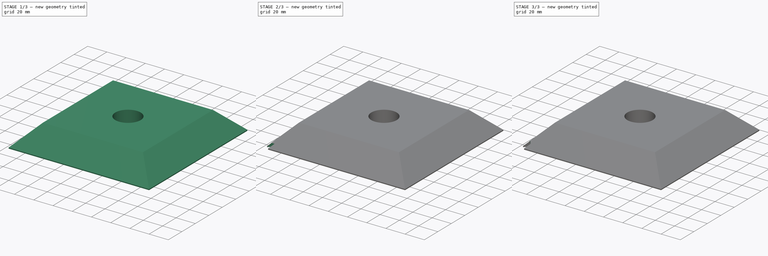
[diagram: build sequence overview — one tinted view per stage of 3, left to right]
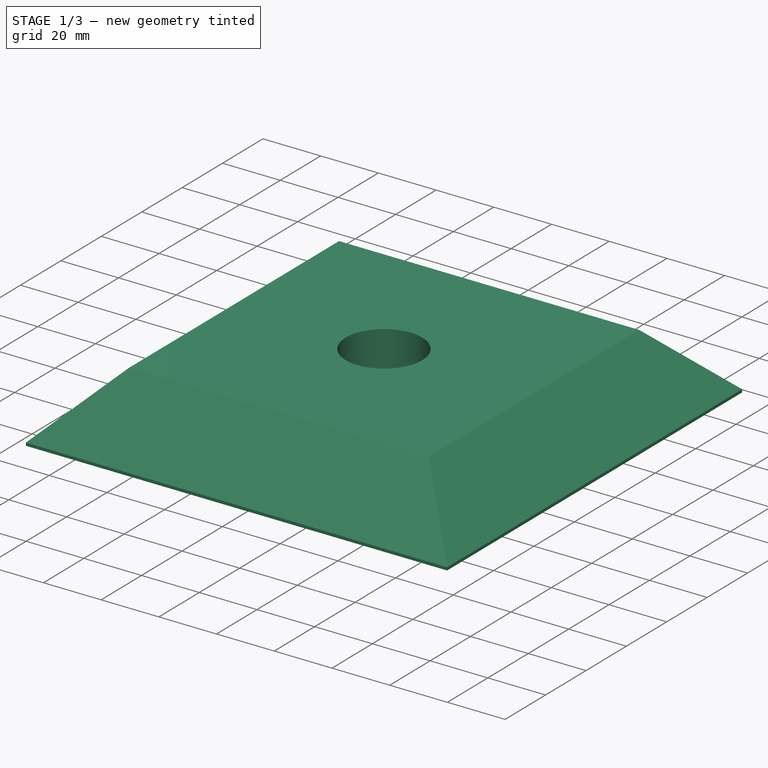
[diagram: stage 1 of 3 — iso view after this stage's code; geometry added in this stage tinted green]
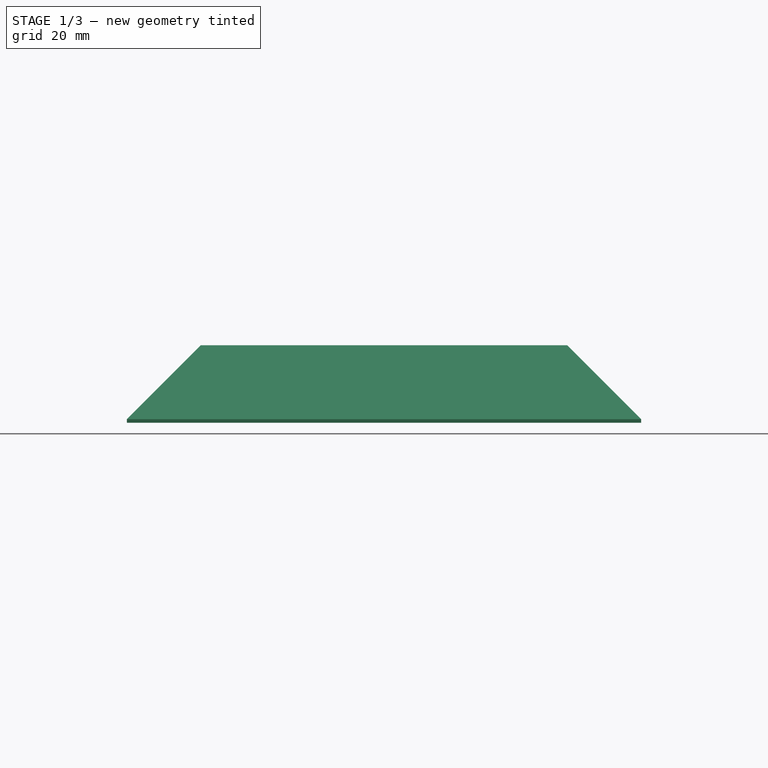
[diagram: stage 1 of 3 — front view after this stage's code; geometry added in this stage tinted green]
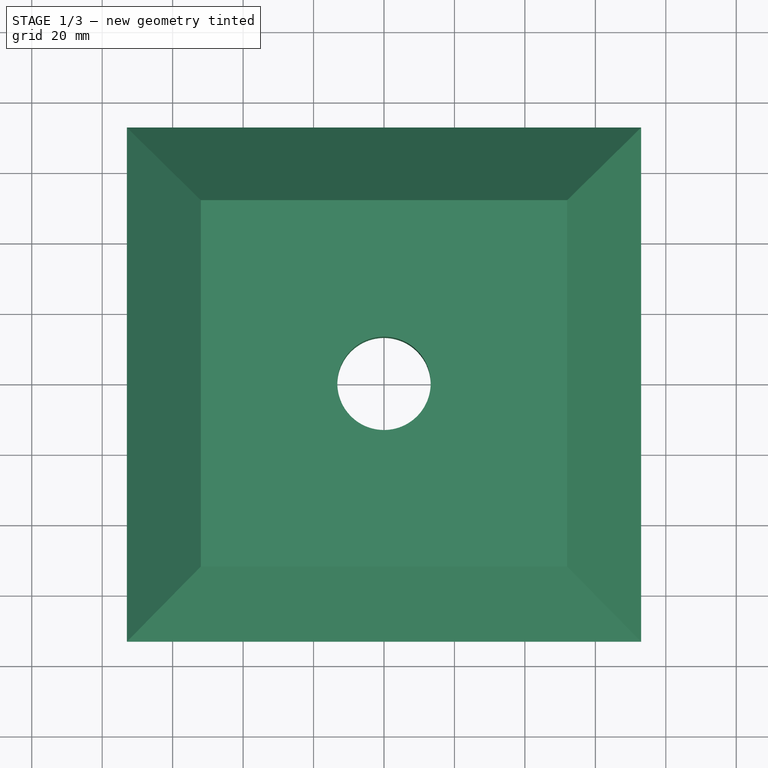
[diagram: stage 1 of 3 — top view after this stage's code; geometry added in this stage tinted green]
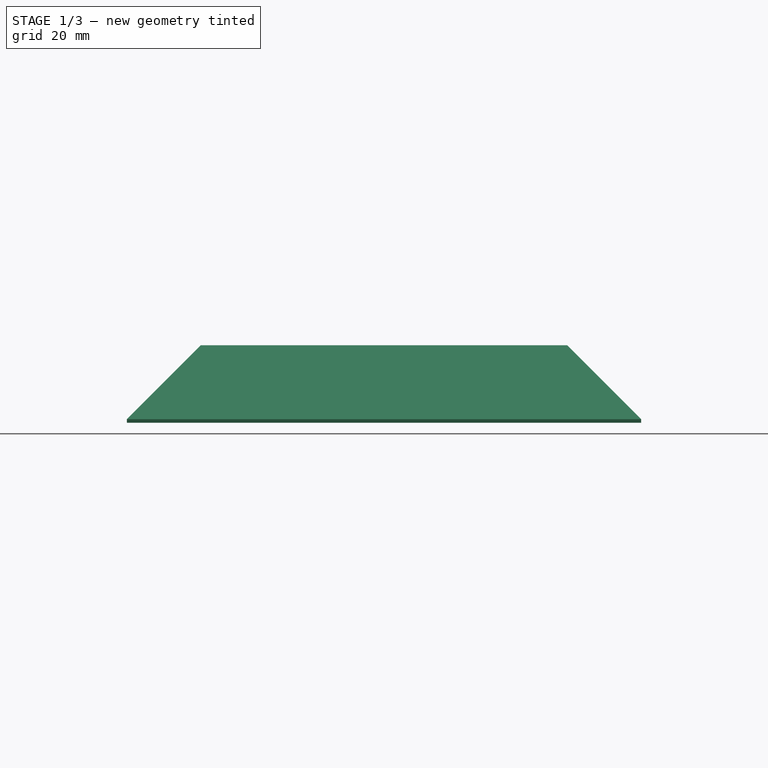
[diagram: stage 1 of 3 — right view after this stage's code; geometry added in this stage tinted green]
FCSTD DOCUMENT  (FreeCAD 1.0R39319 (Git))
Label: Downlight bracket for candle holder
License: All rights reserved
objects: Sketcher::SketchObject×5, PartDesign::Pocket×4, PartDesign::Fillet×2, PartDesign::Pad×1, PartDesign::Chamfer×1, PartDesign::Body×1
note: 35 computed .brp shape members not serialized (recipe doc carries the construction recipe); baked Part::Feature solids carry a one-line shape summary decoded from their .brp

FEATURE [Sketcher::SketchObject] Sketch
  ArcFitTolerance = 1e-06
  AttachmentSupport = -> [XY_Plane]
  FullyConstrained = true
  MakeInternals = false
  MapMode = 5
  sketch-geometry (4):
    g0: LineSegment StartX=-73 StartY=73 StartZ=0 EndX=-73 EndY=-73 EndZ=0
    g1: LineSegment StartX=-73 StartY=-73 StartZ=0 EndX=73 EndY=-73 EndZ=0
    g2: LineSegment StartX=73 StartY=-73 StartZ=0 EndX=73 EndY=73 EndZ=0
    g3: LineSegment StartX=73 StartY=73 StartZ=0 EndX=-73 EndY=73 EndZ=0
  constraints (10):
    c: Coincident(g0,g1)
    c: Coincident(g1,g2)
    c: Coincident(g2,g3)
    c: Coincident(g3,g0)
    c: Vertical(g0)
    c: Horizontal(g1)
    c: Symmetric(g2,g0,g-2)
    c: Symmetric(g2,g1,g-1)
    c: Distance(g3) = 146
    c: Distance(g2) = 146
FEATURE [PartDesign::Pad] Pad
  Direction = (0,0,1)
  Length = 22
  Length2 = 10
  Profile = -> Sketch
  ReferenceAxis = -> Sketch [N_Axis]
  Refine = true
  Suppressed = false
  Type = 0
FEATURE [Sketcher::SketchObject] Sketch001
  ArcFitTolerance = 1e-06
  AttachmentSupport = -> [Pad]
  FullyConstrained = true
  MakeInternals = false
  MapMode = 5
  Placement = pos=(0,0,22) rot=(0,0,1;0rad)
  sketch-geometry (1):
    g0: Circle CenterX=0 CenterY=0 CenterZ=0 NormalX=0 NormalY=0 NormalZ=1 AngleXU=0 Radius=13.25
  constraints (2):
    c: Diameter(g0) = 26.5
    c: Coincident(g0,g-1)
FEATURE [PartDesign::Chamfer] Chamfer
  Angle = 45
  Base = -> Pad [Edge10,Edge7,Edge4,Edge12]
  BaseFeature = -> Pad
  ChamferType = 0
  FlipDirection = false
  Refine = true
  Size = 21
  Size2 = 21
  SupportTransform = false
  Suppressed = false
  UseAllEdges = false
FEATURE [PartDesign::Pocket] Pocket
  BaseFeature = -> Chamfer
  Direction = (0,0,-1)
  Length = 5
  Length2 = 5
  Profile = -> Sketch001
  ReferenceAxis = -> Sketch001 [N_Axis]
  Refine = true
  Suppressed = false
  Type = 1
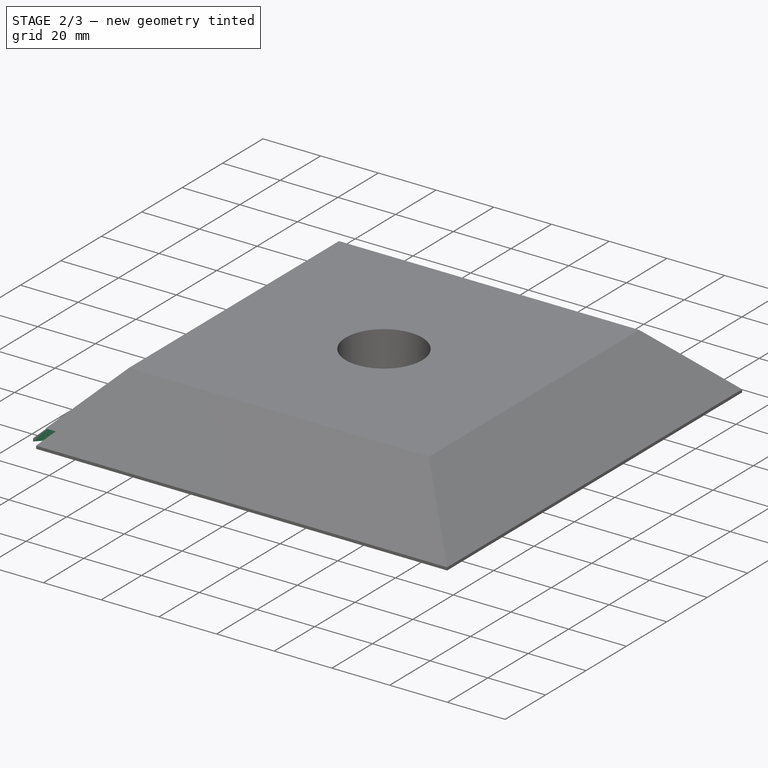
[diagram: stage 2 of 3 — iso view after this stage's code; geometry added in this stage tinted green]
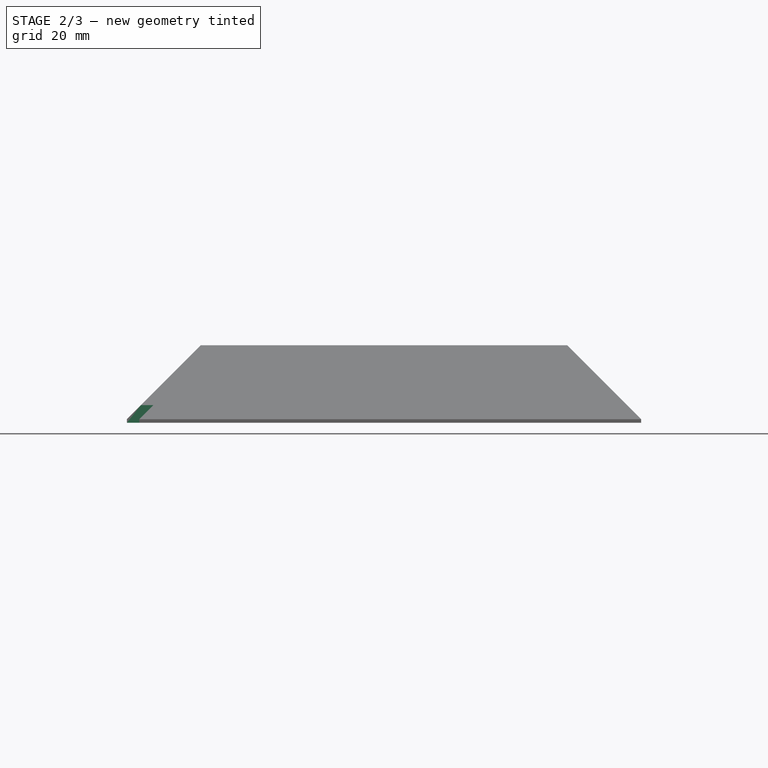
[diagram: stage 2 of 3 — front view after this stage's code; geometry added in this stage tinted green]
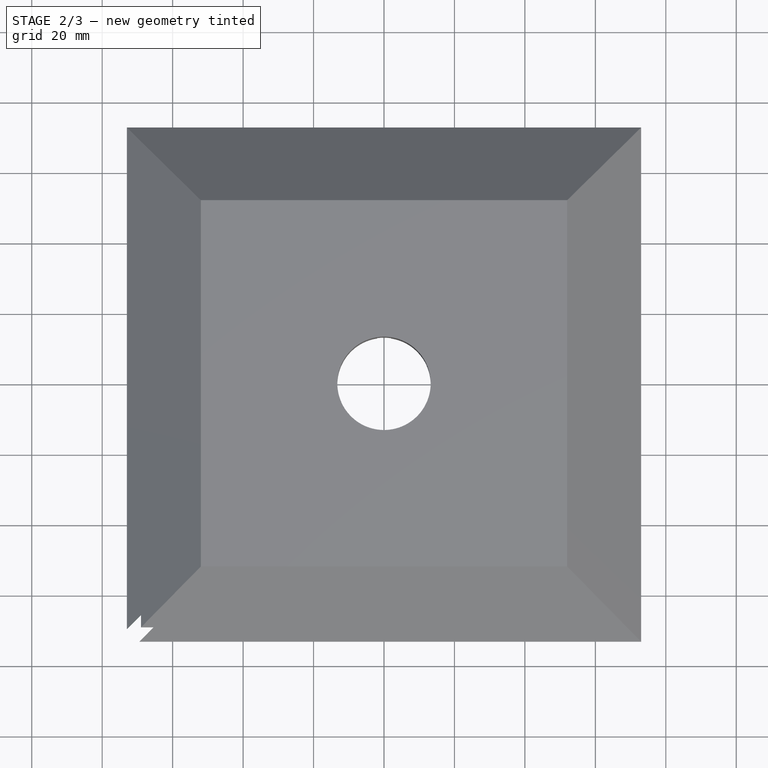
[diagram: stage 2 of 3 — top view after this stage's code; geometry added in this stage tinted green]
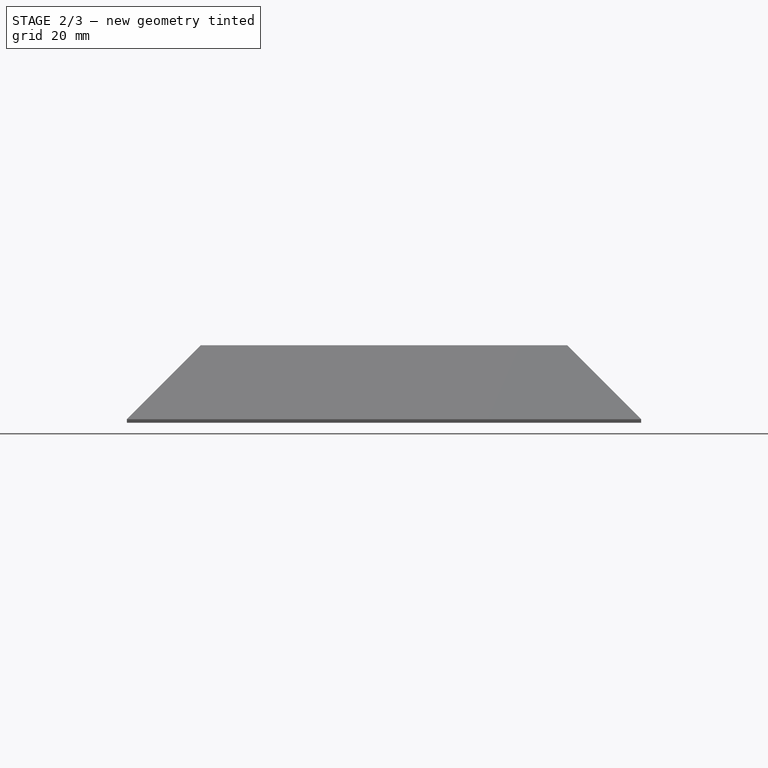
[diagram: stage 2 of 3 — right view after this stage's code; geometry added in this stage tinted green]
FEATURE [Sketcher::SketchObject] Sketch002
  ArcFitTolerance = 1e-06
  AttachmentSupport = -> [Pocket]
  ExternalGeometry = -> [Pocket]
  FullyConstrained = true
  MakeInternals = false
  MapMode = 5
  Placement = pos=(0,0,0) rot=(1,0,0;3.14159rad)
  sketch-geometry (8):
    g0: LineSegment StartX=23 StartY=53 StartZ=0 EndX=23 EndY=-13.25 EndZ=0
    g1: LineSegment StartX=23 StartY=-13.25 StartZ=0 EndX=44 EndY=-13.25 EndZ=0
    g2: LineSegment StartX=44 StartY=-13.25 StartZ=0 EndX=44 EndY=53 EndZ=0
    g3: LineSegment StartX=44 StartY=53 StartZ=0 EndX=23 EndY=53 EndZ=0
    g4: LineSegment StartX=23 StartY=53 StartZ=0 EndX=-53 EndY=53 EndZ=0
    g5: LineSegment StartX=-53 StartY=53 StartZ=0 EndX=-53 EndY=32 EndZ=0
    g6: LineSegment StartX=-53 StartY=32 StartZ=0 EndX=23 EndY=32 EndZ=0
    g7: LineSegment StartX=23 StartY=32 StartZ=0 EndX=23 EndY=53 EndZ=0
  constraints (23):
    c: Coincident(g0,g1)
    c: Coincident(g1,g2)
    c: Coincident(g2,g3)
    c: Coincident(g3,g0)
    c: Vertical(g0)
    c: Horizontal(g1)
    c: Horizontal(g3)
    c: Distance(g3) = 21
    c: Distance(g0,g-2) = 23
    c: Tangent(g-3,g1)
    c: Vertical(g2)
    c: Coincident(g4,g5)
    c: Coincident(g5,g6)
    c: Coincident(g6,g7)
    c: Coincident(g7,g4)
    c: Horizontal(g4)
    c: Horizontal(g6)
    c: Vertical(g5)
    c: Vertical(g7)
    c: Coincident(g4,g0)
    c: DistanceY(g4,g-4) = 20
    c: DistanceX(g-4,g4) = 20
    c: Equal(g5,g3)
FEATURE [PartDesign::Pocket] Pocket001
  BaseFeature = -> Pocket
  Direction = (0,0,1)
  Length = 20
  Length2 = 5
  Profile = -> Sketch002
  ReferenceAxis = -> Sketch002 [N_Axis]
  Refine = true
  Suppressed = false
  Type = 0
FEATURE [Sketcher::SketchObject] Sketch003
  ArcFitTolerance = 1e-06
  AttachmentSupport = -> [Pocket001]
  ExternalGeometry = -> [Pocket001]
  FullyConstrained = true
  MakeInternals = false
  MapMode = 5
  Placement = pos=(0,0,0) rot=(1,0,0;3.14159rad)
  sketch-geometry (8):
    g0: LineSegment StartX=26 StartY=-13.25 StartZ=0 EndX=30 EndY=-13.25 EndZ=0
    g1: ArcOfCircle CenterX=14.0759 CenterY=-1.17409 CenterZ=0 NormalX=0 NormalY=0 NormalZ=1 AngleXU=0 Radius=16.9709 StartAngle=3.92067 EndAngle=5.49146
    g2: ArcOfCircle CenterX=14 CenterY=-13.1741 CenterZ=0 NormalX=0 NormalY=0 NormalZ=1 AngleXU=0 Radius=16.0002 StartAngle=3.13685 EndAngle=6.27844
    g3: LineSegment StartX=-49.4645 StartY=53 StartZ=0 EndX=-71.2322 EndY=74.7678 EndZ=0
    g4: LineSegment StartX=-71.2322 StartY=74.7678 StartZ=0 EndX=-74.7678 EndY=71.2322 EndZ=0
    g5: LineSegment StartX=-74.7678 StartY=71.2322 StartZ=0 EndX=-53 EndY=49.4645 EndZ=0
    g6: LineSegment StartX=-53 StartY=49.4645 StartZ=0 EndX=-49.4645 EndY=53 EndZ=0
    g7: LineSegment StartX=2 StartY=-13.0982 StartZ=0 EndX=-2 EndY=-13.0982 EndZ=0
  constraints (24):
    c: PointOnObject(g0,g-3)
    c: PointOnObject(g0,g-3)
    c: Distance(g0) = 4
    c: Distance(g0,g-3) = 3
    c: Coincident(g1,g0)
    c: Coincident(g2,g0)
    c: Angle(g1) = 1.5708
    c: Angle(g2) = 3.14159
    c: Coincident(g3,g4)
    c: Coincident(g4,g5)
    c: Coincident(g5,g6)
    c: Coincident(g6,g3)
    c: Parallel(g3,g5)
    c: Parallel(g6,g4)
    c: Perpendicular(g5,g4)
    c: PointOnObject(g3,g-5)
    c: PointOnObject(g5,g-6)
    c: Symmetric(g3,g4,g-8)
    c: Distance(g6) = 5
    c: Symmetric(g1,g2,g-2)
    c: PointOnObject(g7,g-4)
    c: Coincident(g1,g7)
    c: Coincident(g7,g2)
    c: Distance(g7) = 4
FEATURE [PartDesign::Pocket] Pocket002
  BaseFeature = -> Pocket001
  Direction = (0,0,1)
  Length = 5
  Length2 = 5
  Profile = -> Sketch003
  ReferenceAxis = -> Sketch003 [N_Axis]
  Refine = true
  Suppressed = false
  Type = 0
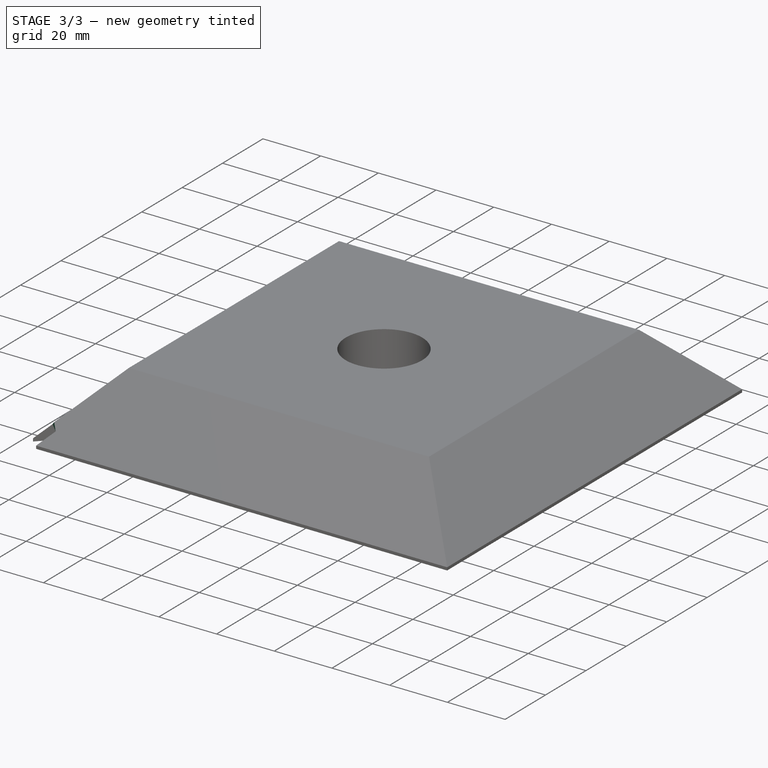
[diagram: stage 3 of 3 — iso view after this stage's code; geometry added in this stage tinted green]
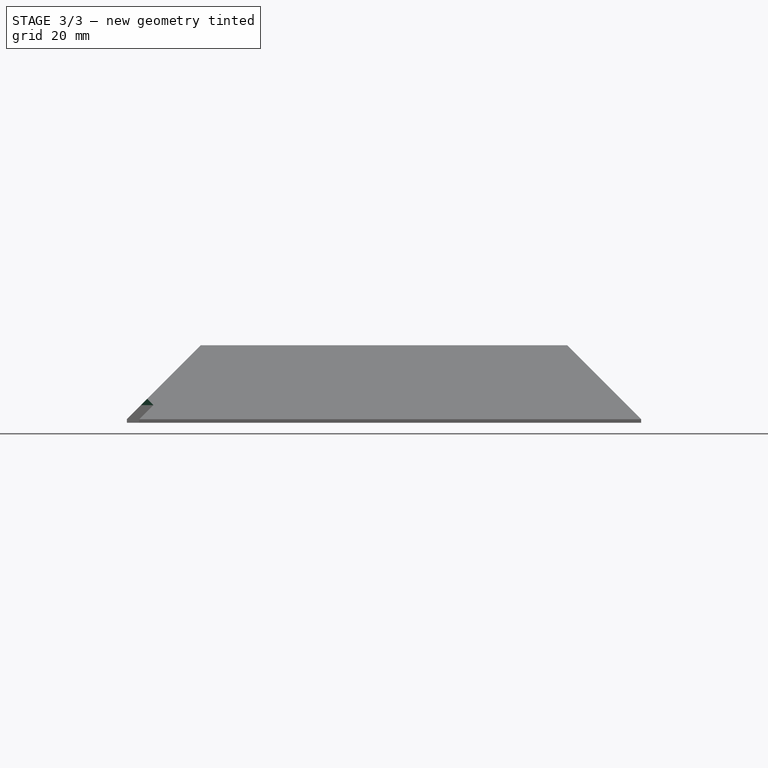
[diagram: stage 3 of 3 — front view after this stage's code; geometry added in this stage tinted green]
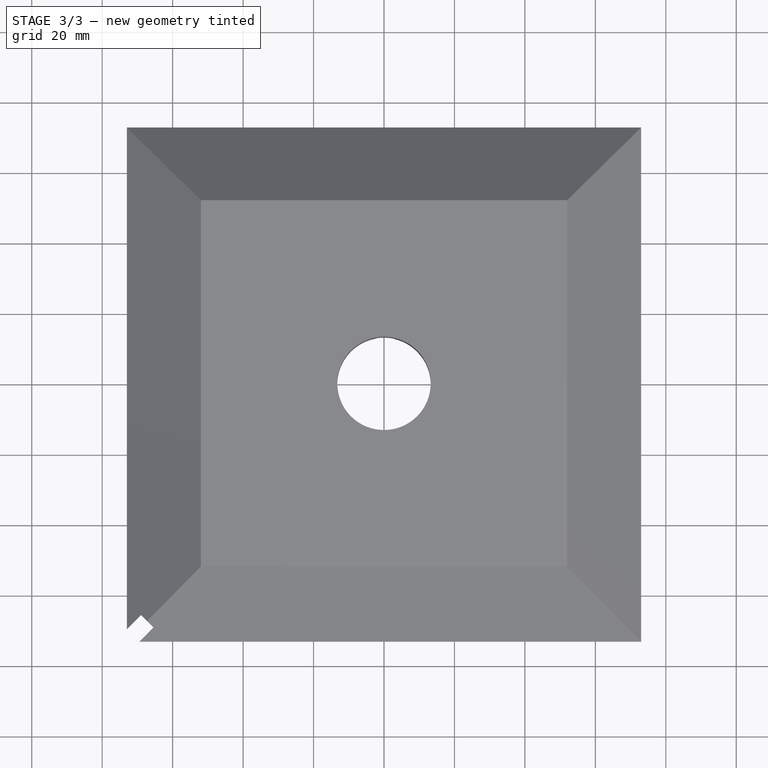
[diagram: stage 3 of 3 — top view after this stage's code; geometry added in this stage tinted green]
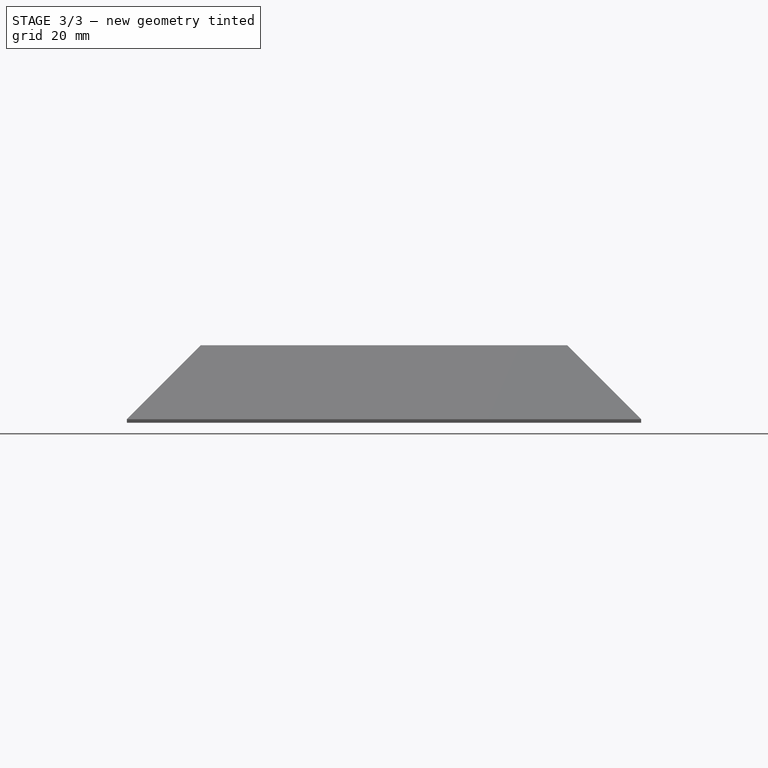
[diagram: stage 3 of 3 — right view after this stage's code; geometry added in this stage tinted green]
FEATURE [Sketcher::SketchObject] Sketch004
  ArcFitTolerance = 1e-06
  AttachmentSupport = -> [Pocket002]
  ExternalGeometry = -> [Pocket002]
  FullyConstrained = true
  MakeInternals = false
  MapMode = 5
  Placement = pos=(0,0,0) rot=(1,0,0;3.14159rad)
  sketch-geometry (4):
    g0: LineSegment StartX=-69 StartY=65.4645 StartZ=0 EndX=-65.4645 EndY=69 EndZ=0
    g1: LineSegment StartX=-65.4645 StartY=69 StartZ=0 EndX=-69.4645 EndY=73 EndZ=0
    g2: LineSegment StartX=-69.4645 StartY=73 StartZ=0 EndX=-73 EndY=69.4645 EndZ=0
    g3: LineSegment StartX=-73 StartY=69.4645 StartZ=0 EndX=-69 EndY=65.4645 EndZ=0
  constraints (8):
    c: Coincident(g-5,g0)
    c: Coincident(g0,g-4)
    c: Coincident(g0,g1)
    c: Coincident(g1,g-3)
    c: Coincident(g1,g2)
    c: Coincident(g2,g-6)
    c: Coincident(g2,g3)
    c: Coincident(g3,g0)
FEATURE [PartDesign::Pocket] Pocket003
  BaseFeature = -> Pocket002
  Direction = (0,0,1)
  Length = 5
  Length2 = 5
  Profile = -> Sketch004
  ReferenceAxis = -> Sketch004 [N_Axis]
  Refine = true
  Suppressed = false
  Type = 1
FEATURE [PartDesign::Fillet] Fillet
  Base = -> Pocket003 [Edge55,Edge53,Edge45,Edge36,Edge39,Edge34]
  BaseFeature = -> Pocket003
  Radius = 1
  Refine = true
  SupportTransform = false
  Suppressed = false
  UseAllEdges = false
FEATURE [PartDesign::Fillet] Fillet001
  Base = -> Fillet [Edge54,Edge45,Edge42,Edge48]
  BaseFeature = -> Fillet
  Radius = 0.7
  Refine = true
  SupportTransform = false
  Suppressed = false
  UseAllEdges = false
FEATURE [PartDesign::Body] Body
  AllowCompound = false
  Group = -> [Sketch,Pad,Chamfer,Sketch001,Pocket,Sketch002,Pocket001,Sketch003,Pocket002,Sketch004,Pocket003,Fillet,Fillet001]
  Origin = -> Origin
  Tip = -> Fillet001
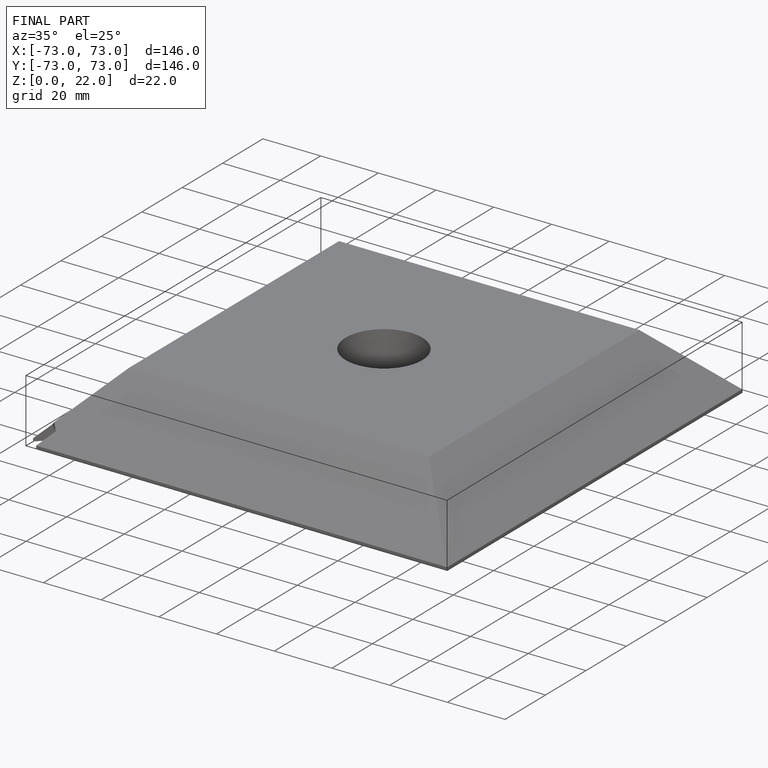
[diagram: finished part — iso view with bounding-box wireframe]
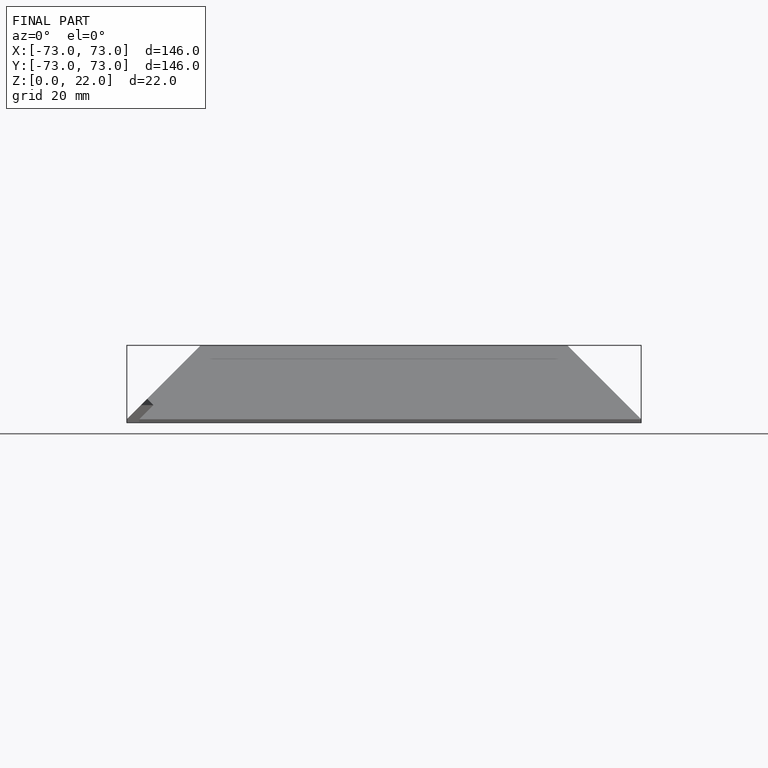
[diagram: finished part — front view with bounding-box wireframe]
